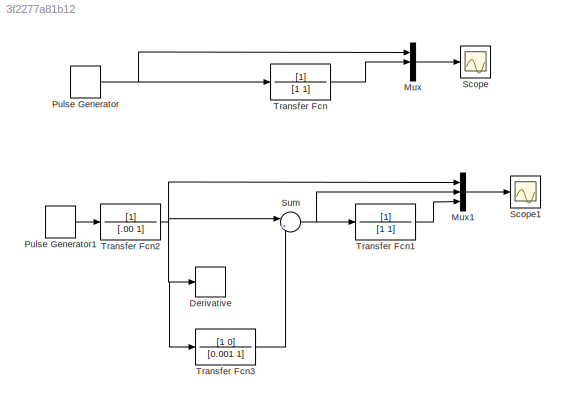
MODEL slx_3f2277a81b12
KIND model
BLOCK [Derivative] Derivative
BLOCK [Mux] Mux
  DisplayOption = bar
  Inputs = 3
  Ports = [3, 1]
BLOCK [Mux] Mux1
  DisplayOption = bar
  Inputs = 3
  Ports = [3, 1]
BLOCK [DiscretePulseGenerator] Pulse Generator
  Period = 5
  Ports = [0, 1]
  PulseType = Time based
  PulseWidth = 50
BLOCK [DiscretePulseGenerator] Pulse Generator1
  Period = 5
  Ports = [0, 1]
  PulseType = Time based
  PulseWidth = 50
BLOCK [Scope] Scope
  DataFormat = StructureWithTime
  Floating = off
  NumInputPorts = 1
  Ports = [1]
  SampleTime = 0
  ShowLegends = off
BLOCK [Scope] Scope1
  DataFormat = StructureWithTime
  Floating = off
  MaxDataPoints = 500000
  NumInputPorts = 1
  Ports = [1]
  SampleTime = 0
  SaveName = ScopeData1
  ShowLegends = off
BLOCK [Sum] Sum
  IconShape = round
  InputSameDT = off
  Inputs = |++
  OutDataTypeStr = Inherit: Inherit via internal rule
  Ports = [2, 1]
  SaturateOnIntegerOverflow = off
BLOCK [TransferFcn] Transfer Fcn
  Denominator = [1 1]
BLOCK [TransferFcn] Transfer Fcn1
  Denominator = [1 1]
BLOCK [TransferFcn] Transfer Fcn2
  Denominator = [.00 1]
BLOCK [TransferFcn] Transfer Fcn3
  Denominator = [0.001 1]
  Numerator = [1 0]
LINE Mux1:1 -> Scope1:1
LINE Mux:1 -> Scope:1
LINE Pulse Generator1:1 -> Transfer Fcn2:1
NET Pulse Generator:1 -> Mux:1, Transfer Fcn:1
NET Sum:1 -> Mux1:2, Transfer Fcn1:1
LINE Transfer Fcn1:1 -> Mux1:3
NET Transfer Fcn2:1 -> Derivative:1, Mux1:1, Sum:1, Transfer Fcn3:1
LINE Transfer Fcn3:1 -> Sum:2
LINE Transfer Fcn:1 -> Mux:2
note: NET lines group one-source signal fan-out (src -> all destinations, sorted); 1:1 wires keep LINE
